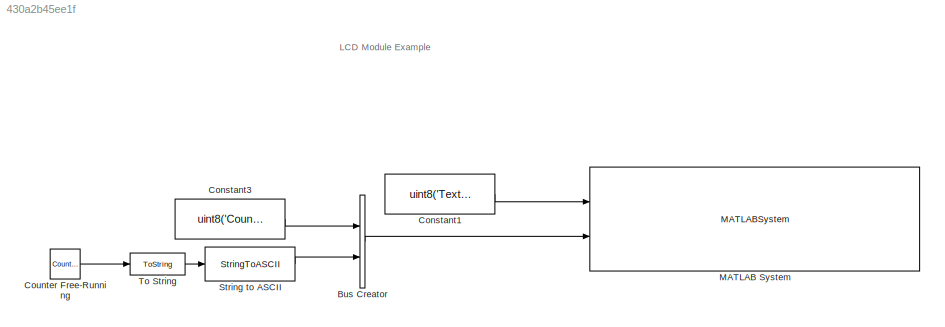
MODEL slx_430a2b45ee1f
KIND model
CONFIG AbsTol = auto
CONFIG EnableMultiTasking = on
CONFIG FixedStep = 0.1
CONFIG MaxStep = auto
CONFIG MinStep = auto
CONFIG RelTol = 1e-3
CONFIG SampleTimeConstraint = Unconstrained
CONFIG Solver = FixedStepDiscrete
CONFIG SolverName = FixedStepDiscrete
CONFIG StartTime = 0.0
CONFIG StopTime = 20
BLOCK [BusCreator] Bus Creator
  DisplayOption = bar
  InheritFromInputs = on
  Inputs = 2
  Ports = [2, 1]
BLOCK [Constant] Constant1
  Value = uint8('Text')
BLOCK [Constant] Constant3
  Value = uint8('Counter:')
BLOCK [Reference] Counter Free-Running  REF=simulink/Sources/Counter
Free-Running
  Ports = [0, 1]
  SourceBlock = simulink/Sources/Counter\nFree-Running
  SourceProductBaseCode = SL
  SourceType = Counter Free-Running
BLOCK [MATLABSystem] MATLAB System
  MaskDisplay = color('white');\nimage('LCD.png','center')\nplot([100,100,100,100]*1,[100,100,100,100]*1);\ntext(18,60, ' Line 1 ', 'horizontalAlignment', 'center','verticalAlignment', 'middle');\nplot([100,100,100,100]*0,[100,100,100,100]*0);\ntext(18,40, ' Line 2 ', 'horizontalAlignment', 'center','verticalAlignment', 'middle');\ncolor('black');\nfprintf('LCD');
  MaskType = LCD
  Ports = [2]
  System = LCD
BLOCK [StringToASCII] String to ASCII
  OutputVectorSize = 16
BLOCK [ToString] To String
ANNOTATION (root): LCD Module Example
LINE Bus Creator:1 -> MATLAB System:2
LINE Constant1:1 -> MATLAB System:1
LINE Constant3:1 -> Bus Creator:1
LINE Counter Free-Running:1 -> To String:1
LINE String to ASCII:1 -> Bus Creator:2
LINE To String:1 -> String to ASCII:1
